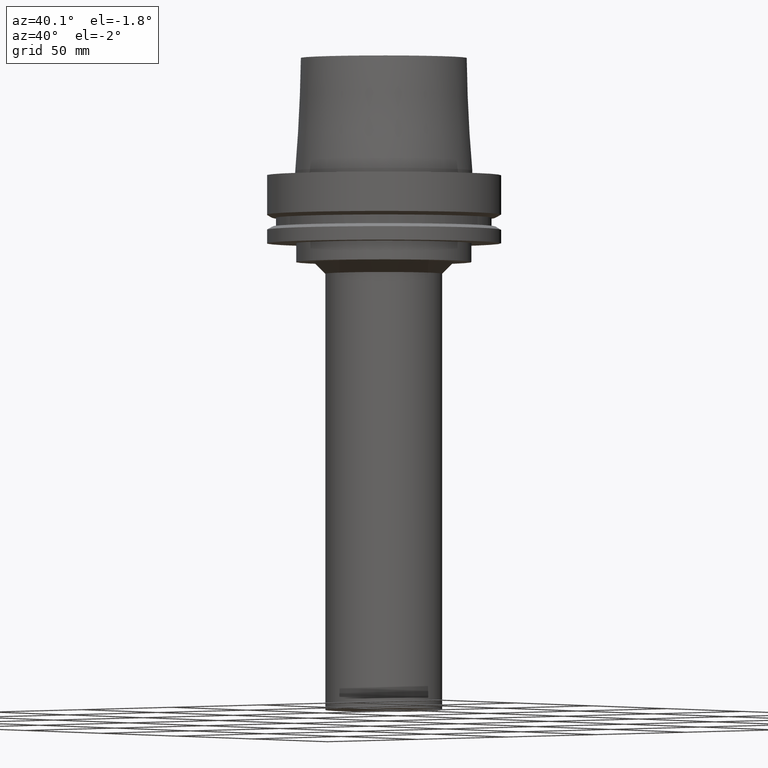
[diagram: clean part render]
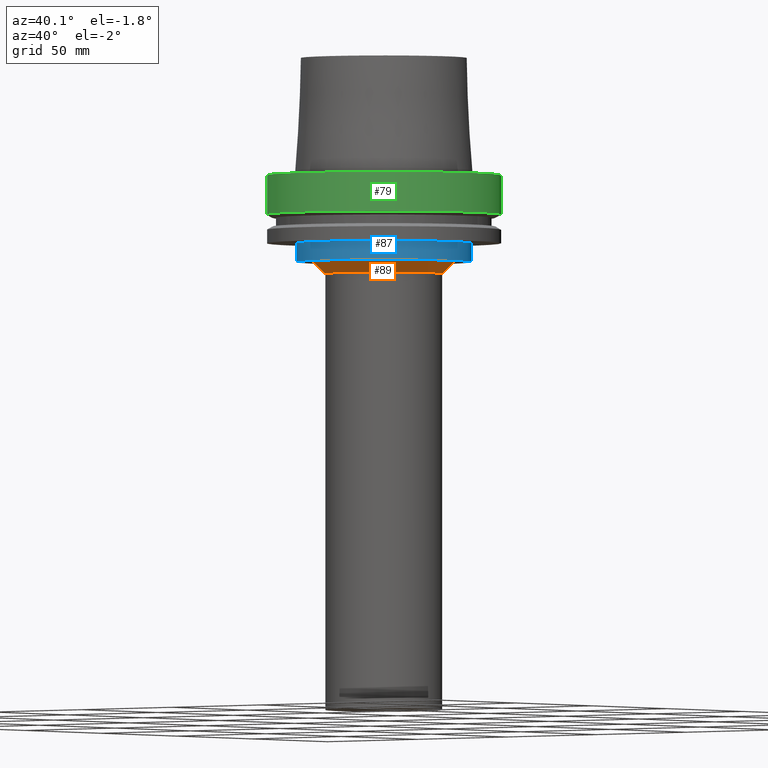
[diagram: same view with three faces highlighted in distinct colors, each labeled with its STEP entity id]
A machine part, auxiliary view with three faces highlighted in distinct colors.
Their STEP definitions:

[orange] entity #89 — the highlighted conical surface has half-angle 45 deg.
#89=ADVANCED_FACE('',(#134,#135),#136,.T.);
#134=FACE_BOUND('',#183,.T.);
#135=FACE_BOUND('',#184,.T.);
#136=CONICAL_SURFACE('',#185,27.5,0.785398163397448);
#183=EDGE_LOOP('',(#260));
#184=EDGE_LOOP('',(#261));
#185=AXIS2_PLACEMENT_3D('',#262,#263,#264);
#260=ORIENTED_EDGE('',*,*,#288,.F.);
#261=ORIENTED_EDGE('',*,*,#287,.T.);
#262=CARTESIAN_POINT('',(2.41867742831602E-015,4.83735485663205E-015,-39.5));
#263=DIRECTION('',(-6.12323399573677E-017,-1.22464679914735E-016,1.0));
#264=DIRECTION('',(-1.23259516440783E-032,1.0,1.22464679914735E-016));
#287=EDGE_CURVE('',#316,#316,#317,.T.);
#288=EDGE_CURVE('',#318,#318,#319,.T.);
#316=VERTEX_POINT('',#348);
#317=CIRCLE('',#349,30.0);
#318=VERTEX_POINT('',#350);
#319=CIRCLE('',#351,25.0);
#348=CARTESIAN_POINT('',(2.26559657842261E-015,30.0,-37.0));
#349=AXIS2_PLACEMENT_3D('',#393,#394,#395);
#350=CARTESIAN_POINT('',(2.57175827820944E-015,25.0,-42.0));
#351=AXIS2_PLACEMENT_3D('',#396,#397,#398);
#393=CARTESIAN_POINT('',(2.26559657842261E-015,4.53119315684521E-015,-37.0000000000001));
#394=DIRECTION('',(6.12323399573677E-017,1.22464679914735E-016,-1.0));
#395=DIRECTION('',(-1.23259516440783E-032,1.0,1.22464679914735E-016));
#396=CARTESIAN_POINT('',(2.57175827820944E-015,5.14351655641888E-015,-42.0));
#397=DIRECTION('',(6.12323399573677E-017,1.22464679914735E-016,-1.0));
#398=DIRECTION('',(-1.23259516440783E-032,1.0,1.22464679914735E-016));

[blue] entity #87 — the highlighted cylindrical surface (bore or boss wall) has radius 37.5 mm, axis along (-0, -0, 1).
#87=ADVANCED_FACE('',(#128,#129),#130,.T.);
#128=FACE_BOUND('',#177,.T.);
#129=FACE_BOUND('',#178,.T.);
#130=CYLINDRICAL_SURFACE('',#179,37.5000000000077);
#177=EDGE_LOOP('',(#250));
#178=EDGE_LOOP('',(#251));
#179=AXIS2_PLACEMENT_3D('',#252,#253,#254);
#250=ORIENTED_EDGE('',*,*,#286,.F.);
#251=ORIENTED_EDGE('',*,*,#285,.T.);
#252=CARTESIAN_POINT('',(2.02066721859313E-015,4.04133443718626E-015,-33.0));
#253=DIRECTION('',(-6.12323399573676E-017,-1.22464679914735E-016,1.0));
#254=DIRECTION('',(-1.23259516440783E-032,1.0,1.22464679914735E-016));
#285=EDGE_CURVE('',#312,#312,#313,.T.);
#286=EDGE_CURVE('',#314,#314,#315,.T.);
#312=VERTEX_POINT('',#344);
#313=CIRCLE('',#345,37.4999999999988);
#314=VERTEX_POINT('',#346);
#315=CIRCLE('',#347,37.5000000000165);
#344=CARTESIAN_POINT('',(1.77573785876366E-015,37.4999999999988,-29.0));
#345=AXIS2_PLACEMENT_3D('',#387,#388,#389);
#346=CARTESIAN_POINT('',(2.2655965784226E-015,37.5000000000165,-37.0));
#347=AXIS2_PLACEMENT_3D('',#390,#391,#392);
#387=CARTESIAN_POINT('',(1.77573785876366E-015,3.55147571752732E-015,-29.0));
#388=DIRECTION('',(6.12323399573677E-017,1.22464679914735E-016,-1.0));
#389=DIRECTION('',(-1.23259516440783E-032,1.0,1.22464679914735E-016));
#390=CARTESIAN_POINT('',(2.2655965784226E-015,4.53119315684521E-015,-37.0));
#391=DIRECTION('',(6.12323399573677E-017,1.22464679914735E-016,-1.0));
#392=DIRECTION('',(-1.23259516440783E-032,1.0,1.22464679914735E-016));

[green] entity #79 — the highlighted cylindrical surface (bore or boss wall) has radius 50 mm, axis along (-0, -0, 1).
#79=ADVANCED_FACE('',(#104,#105),#106,.T.);
#104=FACE_BOUND('',#153,.T.);
#105=FACE_BOUND('',#154,.T.);
#106=CYLINDRICAL_SURFACE('',#155,50.0);
#153=EDGE_LOOP('',(#210));
#154=EDGE_LOOP('',(#211));
#155=AXIS2_PLACEMENT_3D('',#212,#213,#214);
#210=ORIENTED_EDGE('',*,*,#278,.F.);
#211=ORIENTED_EDGE('',*,*,#277,.T.);
#212=CARTESIAN_POINT('',(5.12894471071548E-016,1.0257889421431E-015,-8.37620236999999));
#213=DIRECTION('',(-6.12323399573677E-017,-1.22464679914735E-016,1.0));
#214=DIRECTION('',(-1.23259516440783E-032,1.0,1.22464679914735E-016));
#277=EDGE_CURVE('',#296,#296,#297,.T.);
#278=EDGE_CURVE('',#298,#298,#299,.T.);
#296=VERTEX_POINT('',#328);
#297=CIRCLE('',#329,50.0);
#298=VERTEX_POINT('',#330);
#299=CIRCLE('',#331,50.0);
#328=CARTESIAN_POINT('',(-6.16297582203915E-031,50.0,6.12323399573676E-015));
#329=AXIS2_PLACEMENT_3D('',#363,#364,#365);
#330=CARTESIAN_POINT('',(1.0257889421431E-015,50.0,-16.75240474));
#331=AXIS2_PLACEMENT_3D('',#366,#367,#368);
#363=CARTESIAN_POINT('',(0.0,0.0,0.0));
#364=DIRECTION('',(6.12323399573677E-017,1.22464679914735E-016,-1.0));
#365=DIRECTION('',(-1.23259516440783E-032,1.0,1.22464679914735E-016));
#366=CARTESIAN_POINT('',(1.0257889421431E-015,2.05157788428619E-015,-16.75240474));
#367=DIRECTION('',(6.12323399573677E-017,1.22464679914735E-016,-1.0));
#368=DIRECTION('',(-1.23259516440783E-032,1.0,1.22464679914735E-016));